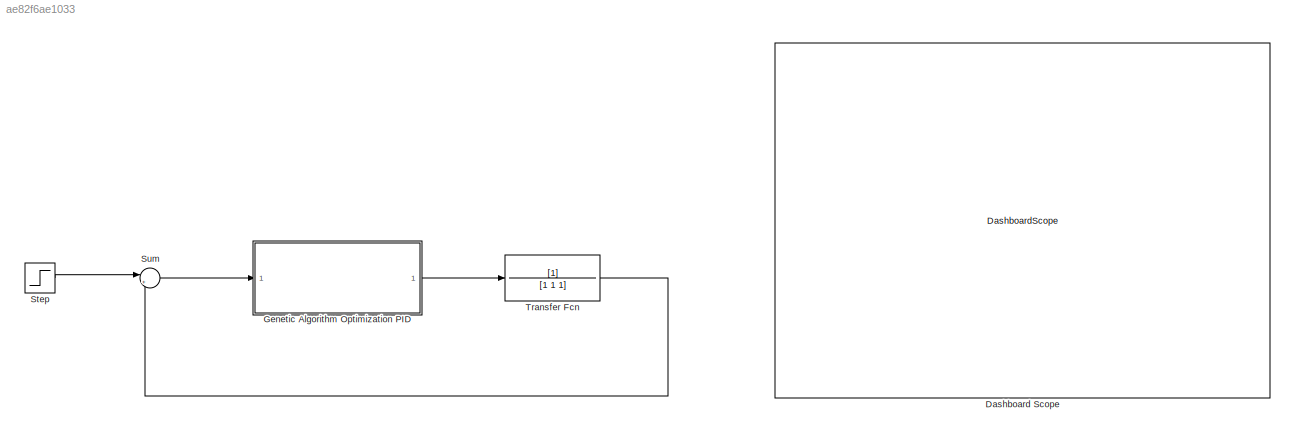
MODEL slx_ae82f6ae1033
KIND model
CONFIG AbsTol = auto
CONFIG EnableMultiTasking = off
CONFIG FixedStep = auto
CONFIG MaxStep = 0.2
CONFIG MinStep = auto
CONFIG RelTol = 1e-3
CONFIG SampleTimeConstraint = Unconstrained
CONFIG SolverName = ode4
CONFIG StartTime = 0.0
CONFIG StopTime =  10
BLOCK [DashboardScope] Dashboard Scope
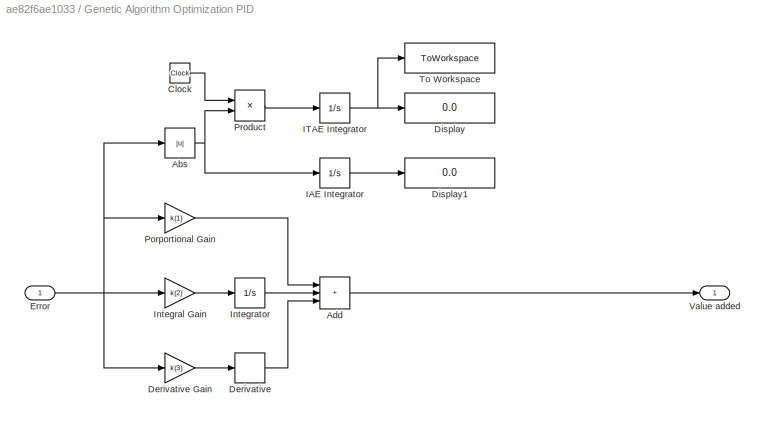
BLOCK [SubSystem] Genetic Algorithm Optimization PID
  Ports = [1, 1]
  RequestExecContextInheritance = off
BLOCK [Abs] Genetic Algorithm Optimization PID/Abs
  SaturateOnIntegerOverflow = off
BLOCK [Sum] Genetic Algorithm Optimization PID/Add
  IconShape = rectangular
  Inputs = +++
  Ports = [3, 1]
BLOCK [Clock] Genetic Algorithm Optimization PID/Clock
BLOCK [Derivative] Genetic Algorithm Optimization PID/Derivative
BLOCK [Gain] Genetic Algorithm Optimization PID/Derivative Gain
  Gain = k(3)
BLOCK [Display] Genetic Algorithm Optimization PID/Display
  Decimation = 1
  Ports = [1]
BLOCK [Display] Genetic Algorithm Optimization PID/Display1
  Commented = on
  Decimation = 1
  Ports = [1]
BLOCK [Inport] Genetic Algorithm Optimization PID/Error
BLOCK [Integrator] Genetic Algorithm Optimization PID/IAE Integrator
  Commented = on
  Ports = [1, 1]
BLOCK [Integrator] Genetic Algorithm Optimization PID/ITAE Integrator
  Ports = [1, 1]
BLOCK [Gain] Genetic Algorithm Optimization PID/Integral Gain
  Gain = k(2)
BLOCK [Integrator] Genetic Algorithm Optimization PID/Integrator
  Ports = [1, 1]
BLOCK [Gain] Genetic Algorithm Optimization PID/Porportional Gain
  Gain = k(1)
BLOCK [Product] Genetic Algorithm Optimization PID/Product
  Ports = [2, 1]
BLOCK [ToWorkspace] Genetic Algorithm Optimization PID/To Workspace
  FixptAsFi = on
  MaxDataPoints = inf
  Ports = [1]
  SampleTime = -1
  VariableName = ITAE
BLOCK [Outport] Genetic Algorithm Optimization PID/Value added
BLOCK [Step] Step
  SampleTime = 0
BLOCK [Sum] Sum
  Inputs = |+-
  Ports = [2, 1]
BLOCK [TransferFcn] Transfer Fcn
  Denominator = [1 1 1]
NET Genetic Algorithm Optimization PID/Abs:1 -> Genetic Algorithm Optimization PID/IAE Integrator:1, Genetic Algorithm Optimization PID/Product:2
LINE Genetic Algorithm Optimization PID/Add:1 -> Genetic Algorithm Optimization PID/Value added:1
LINE Genetic Algorithm Optimization PID/Clock:1 -> Genetic Algorithm Optimization PID/Product:1
LINE Genetic Algorithm Optimization PID/Derivative Gain:1 -> Genetic Algorithm Optimization PID/Derivative:1
LINE Genetic Algorithm Optimization PID/Derivative:1 -> Genetic Algorithm Optimization PID/Add:3
NET Genetic Algorithm Optimization PID/Error:1 -> Genetic Algorithm Optimization PID/Abs:1, Genetic Algorithm Optimization PID/Derivative Gain:1, Genetic Algorithm Optimization PID/Integral Gain:1, Genetic Algorithm Optimization PID/Porportional Gain:1
LINE Genetic Algorithm Optimization PID/IAE Integrator:1 -> Genetic Algorithm Optimization PID/Display1:1
NET Genetic Algorithm Optimization PID/ITAE Integrator:1 -> Genetic Algorithm Optimization PID/Display:1, Genetic Algorithm Optimization PID/To Workspace:1
LINE Genetic Algorithm Optimization PID/Integral Gain:1 -> Genetic Algorithm Optimization PID/Integrator:1
LINE Genetic Algorithm Optimization PID/Integrator:1 -> Genetic Algorithm Optimization PID/Add:2
LINE Genetic Algorithm Optimization PID/Porportional Gain:1 -> Genetic Algorithm Optimization PID/Add:1
LINE Genetic Algorithm Optimization PID/Product:1 -> Genetic Algorithm Optimization PID/ITAE Integrator:1
LINE Genetic Algorithm Optimization PID:1 -> Transfer Fcn:1
LINE Step:1 -> Sum:1
LINE Sum:1 -> Genetic Algorithm Optimization PID:1
LINE Transfer Fcn:1 -> Sum:2
note: NET lines group one-source signal fan-out (src -> all destinations, sorted); 1:1 wires keep LINE
